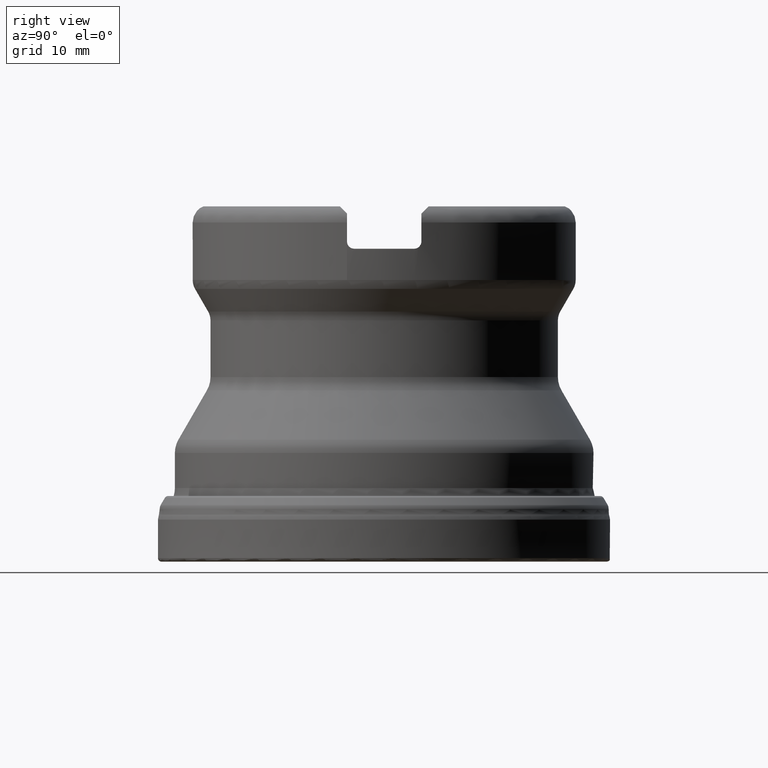
[diagram: clean part render]
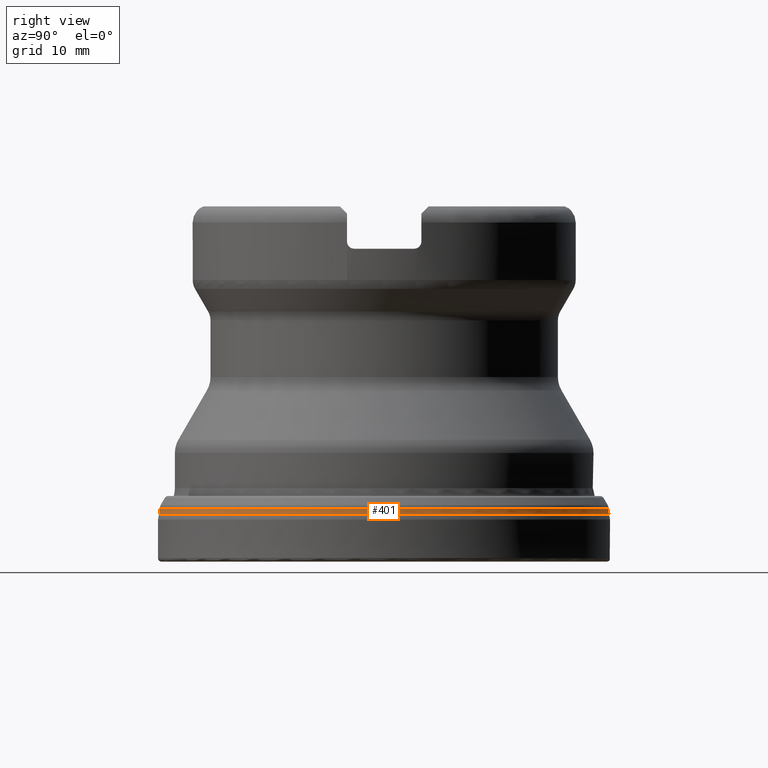
[diagram: same view with one face highlighted and labeled with its STEP entity id]
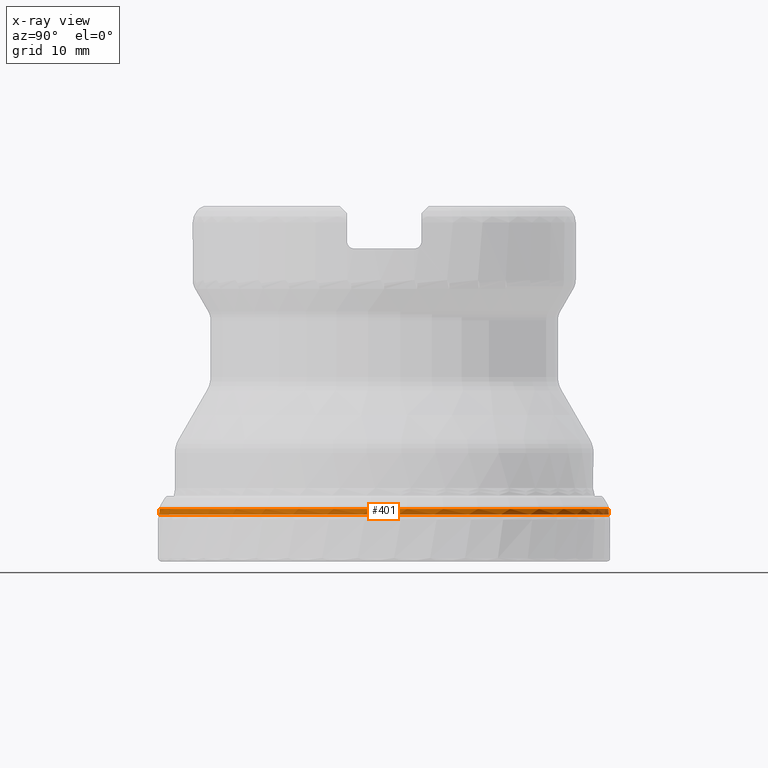
[diagram: x-ray of the same camera — body ghosted, the highlighted face saturated]
A machine part, right view. The second image highlights one B-rep face of the part: STEP entity #401.
The next image is the same camera in x-ray: the body ghosted, the highlighted face saturated — about 0% of this face is hidden behind the body in this view.
In plain terms, the highlighted face is a SurfaceOfRevolution surface.
Its self-contained STEP definition (entity closure, byte-faithful):
#109=SURFACE_OF_REVOLUTION('',#1145,#128);
#128=AXIS1_PLACEMENT('',#2285,#1529);
#231=FACE_BOUND('',#553,.T.);
#232=FACE_BOUND('',#554,.T.);
#401=ADVANCED_FACE('',(#231,#232),#109,.T.);
#553=EDGE_LOOP('',(#787));
#554=EDGE_LOOP('',(#788));
#787=ORIENTED_EDGE('',*,*,#1013,.T.);
#788=ORIENTED_EDGE('',*,*,#1014,.F.);
#896=VERTEX_POINT('',#2269);
#897=VERTEX_POINT('',#2279);
#1013=EDGE_CURVE('',#896,#896,#1078,.T.);
#1014=EDGE_CURVE('',#897,#897,#1079,.T.);
#1078=CIRCLE('',#1265,25.2035318851512);
#1079=CIRCLE('',#1266,25.2879985156481);
#1145=B_SPLINE_CURVE_WITH_KNOTS('',3,(#2280,#2281,#2282,#2283,#2284),
 .UNSPECIFIED.,.F.,.F.,(4,1,4),(0.,0.5,1.),.UNSPECIFIED.);
#1265=AXIS2_PLACEMENT_3D('',#2268,#1524,#1525);
#1266=AXIS2_PLACEMENT_3D('',#2278,#1527,#1528);
#1524=DIRECTION('',(0.,-1.17145536458252E-15,-1.));
#1525=DIRECTION('',(0.,-1.,1.17008597152132E-15));
#1527=DIRECTION('',(0.,-1.17145536458252E-15,-1.));
#1528=DIRECTION('',(0.,-1.,1.16617766619044E-15));
#1529=DIRECTION('',(0.,1.17145536458252E-15,1.));
#2268=CARTESIAN_POINT('',(0.,6.92372694522949E-15,5.91036342873971));
#2269=CARTESIAN_POINT('',(0.,-25.2035318851512,5.91036342873974));
#2278=CARTESIAN_POINT('',(0.,6.16232321708246E-15,5.26039950252697));
#2279=CARTESIAN_POINT('',(0.,-25.2879985156481,5.260399502527));
#2280=CARTESIAN_POINT('',(25.1637805155247,-2.50340150474499,5.26039950252454));
#2281=CARTESIAN_POINT('',(25.1275306680769,-2.52128626944253,5.36277520965687));
#2282=CARTESIAN_POINT('',(25.0750832432297,-2.55511328173065,5.57748324818075));
#2283=CARTESIAN_POINT('',(25.0646845455383,-2.58285098379604,5.80010216840203));
#2284=CARTESIAN_POINT('',(25.0695913277653,-2.59492006517849,5.91036342873971));
#2285=CARTESIAN_POINT('',(0.,0.,0.));